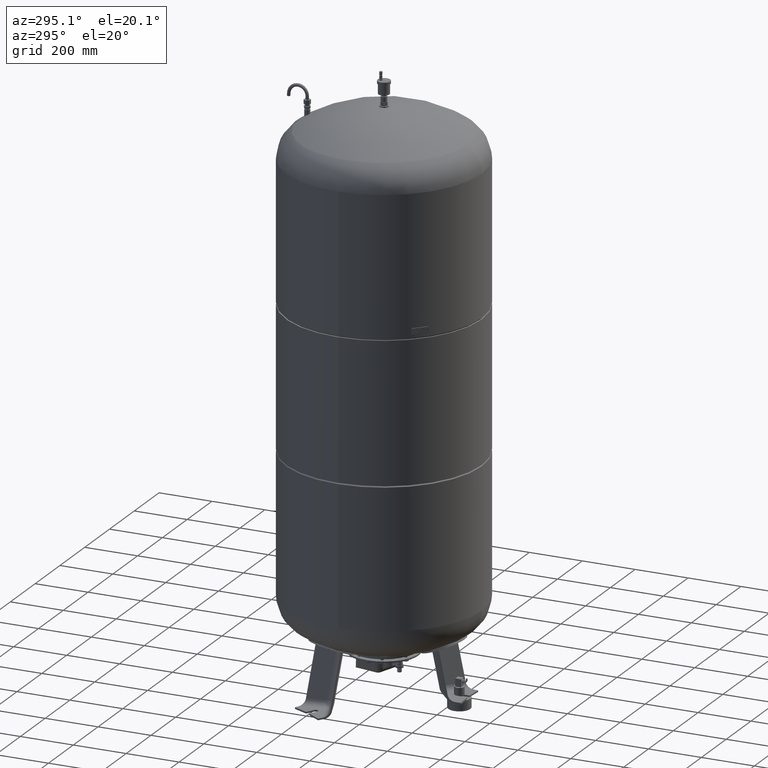
[diagram: clean part render]
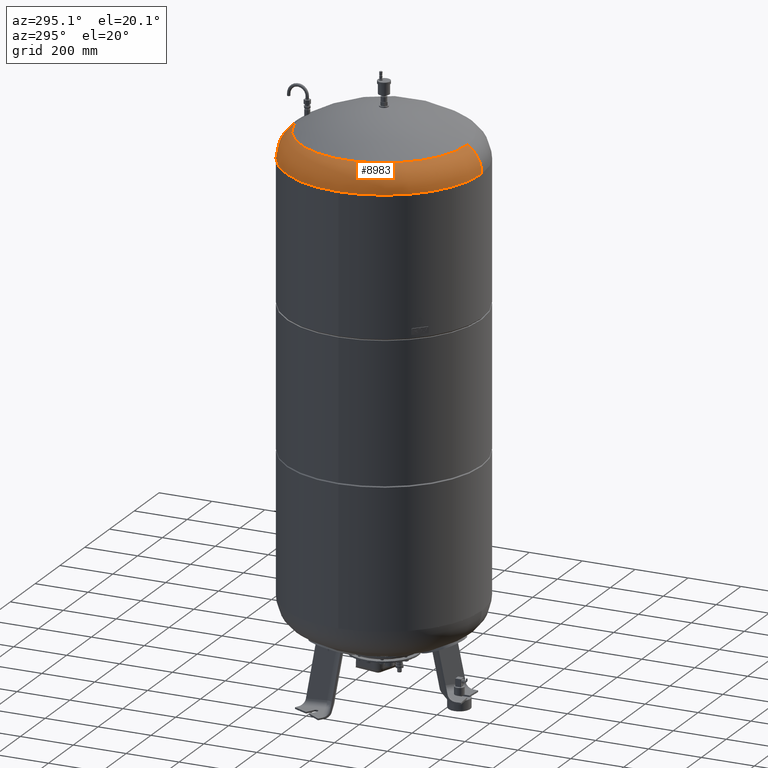
[diagram: same view with one face highlighted and labeled with its STEP entity id]
A machine part, auxiliary view. The second image highlights one B-rep face of the part: STEP entity #8983.
In plain terms, the highlighted toroidal blend (fillet) surface has major radius 254.5 mm and minor (blend) radius 115.5 mm.
Its self-contained STEP definition (entity closure, byte-faithful):
#8729=CARTESIAN_POINT('',(-370.0,1.062956E-014,1961.206120388130600));
#8730=VERTEX_POINT('',#8729);
#8737=CARTESIAN_POINT('',(2.218985E-014,369.999999999999940,1961.206120388130300));
#8738=VERTEX_POINT('',#8737);
#8739=CARTESIAN_POINT('',(-2.312058E-014,-3.468087E-014,1961.206120388130600));
#8740=DIRECTION('',(0.0,0.0,-1.0));
#8741=DIRECTION('',(1.0,0.0,0.0));
#8742=AXIS2_PLACEMENT_3D('',#8739,#8740,#8741);
#8743=CIRCLE('',#8742,370.0);
#8744=EDGE_CURVE('',#8730,#8738,#8743,.T.);
#8761=CARTESIAN_POINT('',(-2.312058E-014,-370.000000000000060,1961.206120388130600));
#8762=VERTEX_POINT('',#8761);
#8763=CARTESIAN_POINT('',(-1.114251E-014,-315.931034482758610,2059.014494274920300));
#8764=VERTEX_POINT('',#8763);
#8765=CARTESIAN_POINT('',(-2.312058E-014,-254.500000000000060,1961.206120388130300));
#8766=DIRECTION('',(-1.0,0.0,0.0));
#8767=DIRECTION('',(0.0,-1.0,0.0));
#8768=AXIS2_PLACEMENT_3D('',#8765,#8766,#8767);
#8769=CIRCLE('',#8768,115.500000000000000);
#8770=EDGE_CURVE('',#8762,#8764,#8769,.T.);
#8780=CARTESIAN_POINT('',(2.754660E-014,315.931034482758610,2059.014494274920300));
#8781=VERTEX_POINT('',#8780);
#8782=CARTESIAN_POINT('',(8.045650E-015,254.500000000000000,1961.206120388130300));
#8783=DIRECTION('',(1.0,0.0,0.0));
#8784=DIRECTION('',(0.0,1.0,0.0));
#8785=AXIS2_PLACEMENT_3D('',#8782,#8783,#8784);
#8786=CIRCLE('',#8785,115.500000000000000);
#8787=EDGE_CURVE('',#8738,#8781,#8786,.T.);
#8955=CARTESIAN_POINT('',(-1.114251E-014,-1.671377E-014,2059.014494274920300));
#8956=DIRECTION('',(0.0,0.0,-1.0));
#8957=DIRECTION('',(1.0,0.0,0.0));
#8958=AXIS2_PLACEMENT_3D('',#8955,#8956,#8957);
#8959=CIRCLE('',#8958,315.931034482758610);
#8960=EDGE_CURVE('',#8764,#8781,#8959,.T.);
#8965=CARTESIAN_POINT('',(-2.312058E-014,-3.468087E-014,1961.206120388130300));
#8966=DIRECTION('',(-1.224647E-016,-1.836970E-016,-1.0));
#8967=DIRECTION('',(0.0,-1.0,0.0));
#8968=AXIS2_PLACEMENT_3D('',#8965,#8966,#8967);
#8969=TOROIDAL_SURFACE('',#8968,254.500000000000030,115.500000000000000);
#8970=ORIENTED_EDGE('',*,*,#8770,.T.);
#8971=ORIENTED_EDGE('',*,*,#8960,.T.);
#8972=ORIENTED_EDGE('',*,*,#8787,.F.);
#8973=ORIENTED_EDGE('',*,*,#8744,.F.);
#8974=CARTESIAN_POINT('',(-2.312058E-014,-3.468087E-014,1961.206120388130600));
#8975=DIRECTION('',(0.0,0.0,-1.0));
#8976=DIRECTION('',(1.0,0.0,0.0));
#8977=AXIS2_PLACEMENT_3D('',#8974,#8975,#8976);
#8978=CIRCLE('',#8977,370.0);
#8979=EDGE_CURVE('',#8762,#8730,#8978,.T.);
#8980=ORIENTED_EDGE('',*,*,#8979,.F.);
#8981=EDGE_LOOP('',(#8970,#8971,#8972,#8973,#8980));
#8982=FACE_OUTER_BOUND('',#8981,.T.);
#8983=ADVANCED_FACE('',(#8982),#8969,.T.);